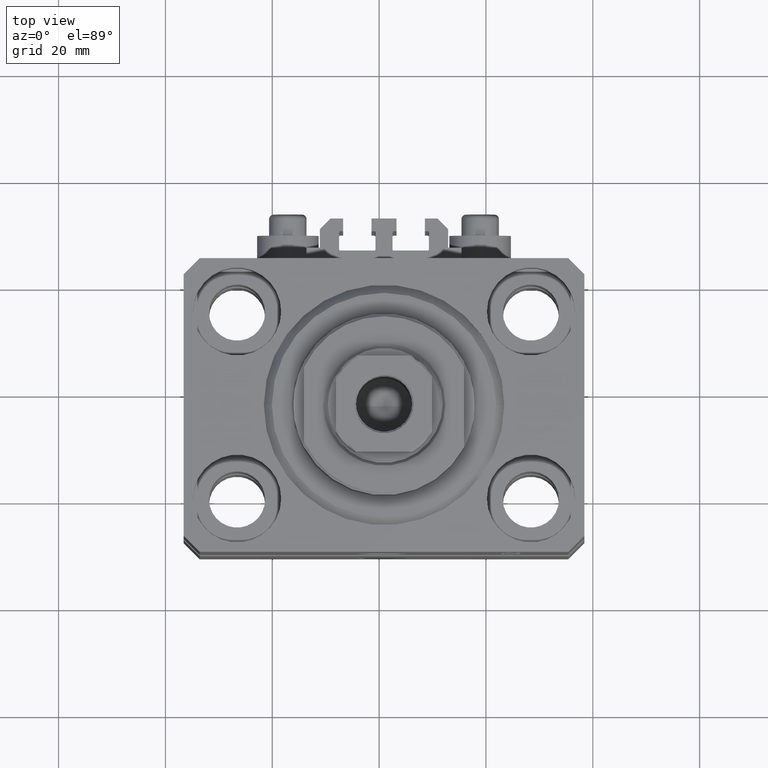
[diagram: clean part render]
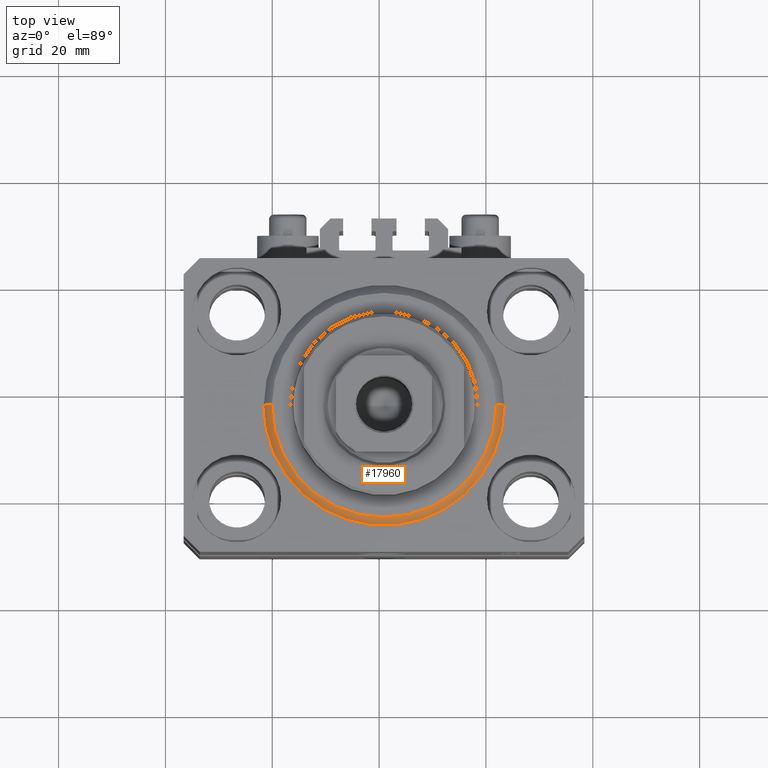
[diagram: same view with one face highlighted and labeled with its STEP entity id]
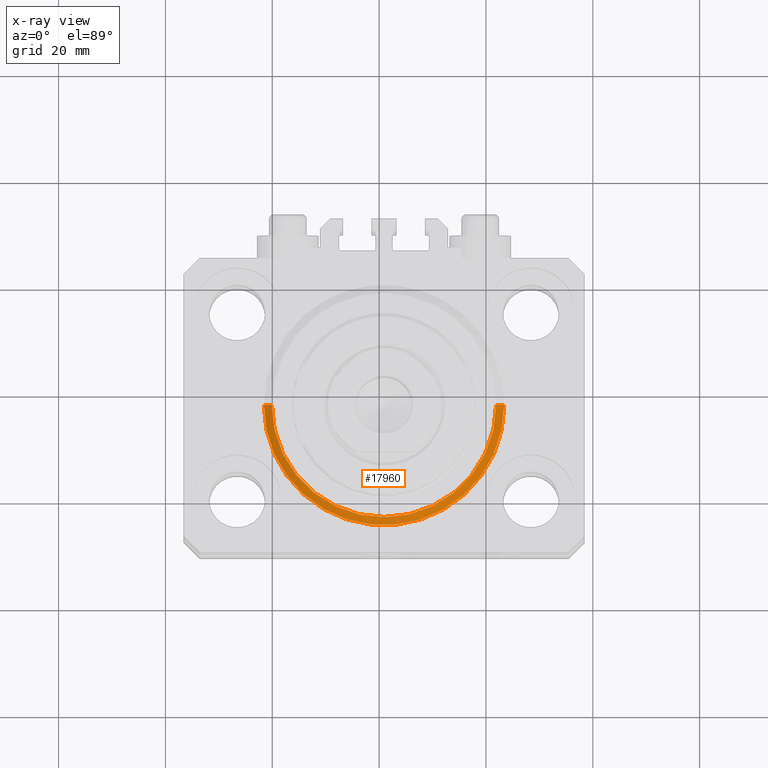
[diagram: x-ray of the same camera — body ghosted, the highlighted face saturated]
A machine part, top view. The second image highlights one B-rep face of the part: STEP entity #17960.
The next image is the same camera in x-ray: the body ghosted, the highlighted face saturated — about 0% of this face is hidden behind the body in this view.
In plain terms, the highlighted conical surface has half-angle 45 deg.
Its self-contained STEP definition (entity closure, byte-faithful):
#188 = VERTEX_POINT ( 'NONE', #2523 ) ;
#315 = AXIS2_PLACEMENT_3D ( 'NONE', #21577, #42421, #31527 ) ;
#1155 = ORIENTED_EDGE ( 'NONE', *, *, #19807, .F. ) ;
#2049 = EDGE_CURVE ( 'NONE', #42146, #188, #43873, .T. ) ;
#2498 = VECTOR ( 'NONE', #46829, 1000.000000000000114 ) ;
#2523 = CARTESIAN_POINT ( 'NONE',  ( 22.50000000000000355, 2.755455298081545172E-15, 1.500000000000001332 ) ) ;
#3014 = LINE ( 'NONE', #35708, #2498 ) ;
#3175 = AXIS2_PLACEMENT_3D ( 'NONE', #41412, #16789, #35242 ) ;
#6327 = CIRCLE ( 'NONE', #24484, 20.99999999999998934 ) ;
#7578 = ORIENTED_EDGE ( 'NONE', *, *, #22199, .F. ) ;
#9183 = CARTESIAN_POINT ( 'NONE',  ( 20.99999999999998934, 0.000000000000000000, 0.000000000000000000 ) ) ;
#11413 = DIRECTION ( 'NONE',  ( 0.7071067811865500152, 0.000000000000000000, 0.7071067811865451302 ) ) ;
#12647 = CARTESIAN_POINT ( 'NONE',  ( -20.99999999999998934, 2.663606788145492628E-15, 0.000000000000000000 ) ) ;
#14742 = VERTEX_POINT ( 'NONE', #12647 ) ;
#16789 = DIRECTION ( 'NONE',  ( -0.000000000000000000, -0.000000000000000000, 1.000000000000000000 ) ) ;
#17017 = FACE_OUTER_BOUND ( 'NONE', #23306, .T. ) ;
#17960 = ADVANCED_FACE ( 'NONE', ( #17017 ), #21343, .T. ) ;
#18700 = VECTOR ( 'NONE', #11413, 1000.000000000000114 ) ;
#19109 = ORIENTED_EDGE ( 'NONE', *, *, #21678, .F. ) ;
#19807 = EDGE_CURVE ( 'NONE', #25285, #188, #23014, .T. ) ;
#21343 = CONICAL_SURFACE ( 'NONE', #3175, 22.50000000000000355, 0.7853981633974517207 ) ;
#21577 = CARTESIAN_POINT ( 'NONE',  ( 0.000000000000000000, 0.000000000000000000, 1.500000000000001332 ) ) ;
#21678 = EDGE_CURVE ( 'NONE', #14742, #25285, #3014, .T. ) ;
#22199 = EDGE_CURVE ( 'NONE', #42146, #14742, #6327, .T. ) ;
#23014 = CIRCLE ( 'NONE', #315, 22.50000000000000355 ) ;
#23306 = EDGE_LOOP ( 'NONE', ( #19109, #7578, #39641, #1155 ) ) ;
#24484 = AXIS2_PLACEMENT_3D ( 'NONE', #38375, #24634, #45717 ) ;
#24634 = DIRECTION ( 'NONE',  ( -0.000000000000000000, -0.000000000000000000, -1.000000000000000000 ) ) ;
#25285 = VERTEX_POINT ( 'NONE', #44561 ) ;
#31527 = DIRECTION ( 'NONE',  ( 1.000000000000000000, 0.000000000000000000, 0.000000000000000000 ) ) ;
#32969 = CARTESIAN_POINT ( 'NONE',  ( 22.50000000000000355, 0.000000000000000000, 1.500000000000001332 ) ) ;
#35242 = DIRECTION ( 'NONE',  ( 1.000000000000000000, 0.000000000000000000, 0.000000000000000000 ) ) ;
#35708 = CARTESIAN_POINT ( 'NONE',  ( -22.50000000000000355, 2.755455298081545172E-15, 1.500000000000001332 ) ) ;
#38375 = CARTESIAN_POINT ( 'NONE',  ( 0.000000000000000000, 0.000000000000000000, 0.000000000000000000 ) ) ;
#39641 = ORIENTED_EDGE ( 'NONE', *, *, #2049, .T. ) ;
#41412 = CARTESIAN_POINT ( 'NONE',  ( 0.000000000000000000, 0.000000000000000000, 1.500000000000001332 ) ) ;
#42146 = VERTEX_POINT ( 'NONE', #9183 ) ;
#42421 = DIRECTION ( 'NONE',  ( -0.000000000000000000, -0.000000000000000000, 1.000000000000000000 ) ) ;
#43873 = LINE ( 'NONE', #32969, #18700 ) ;
#44561 = CARTESIAN_POINT ( 'NONE',  ( -22.50000000000000355, 0.000000000000000000, 1.500000000000001332 ) ) ;
#45717 = DIRECTION ( 'NONE',  ( 1.000000000000000000, 0.000000000000000000, 0.000000000000000000 ) ) ;
#46829 = DIRECTION ( 'NONE',  ( -0.7071067811865500152, 8.659560562354963673E-17, 0.7071067811865451302 ) ) ;